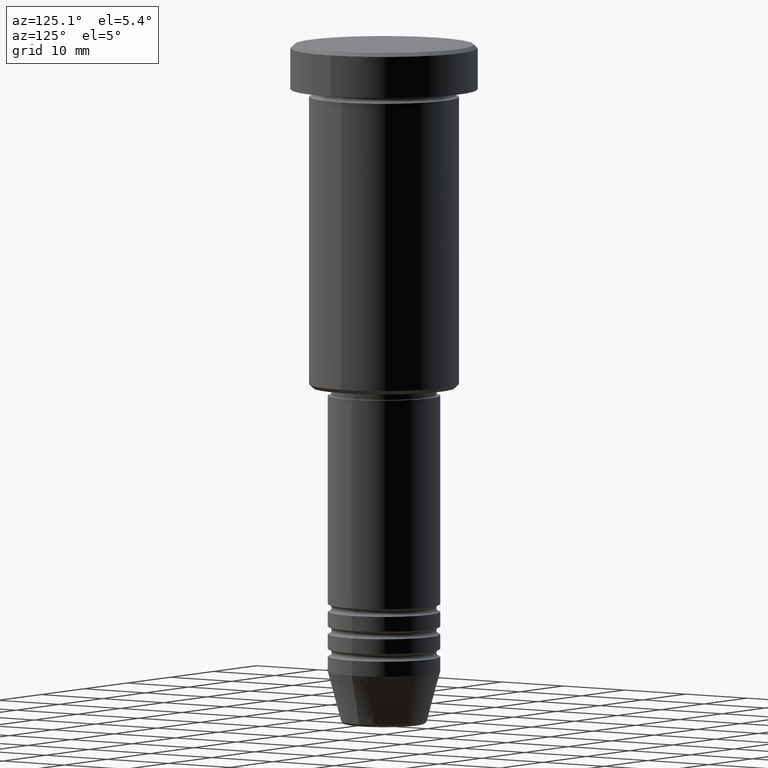
[diagram: clean part render]
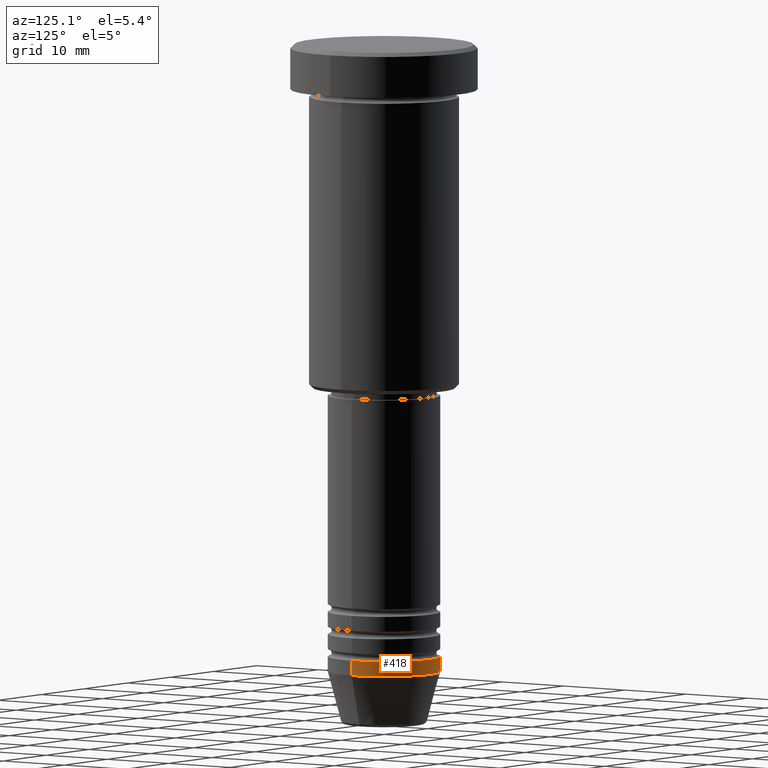
[diagram: same view with one face highlighted and labeled with its STEP entity id]
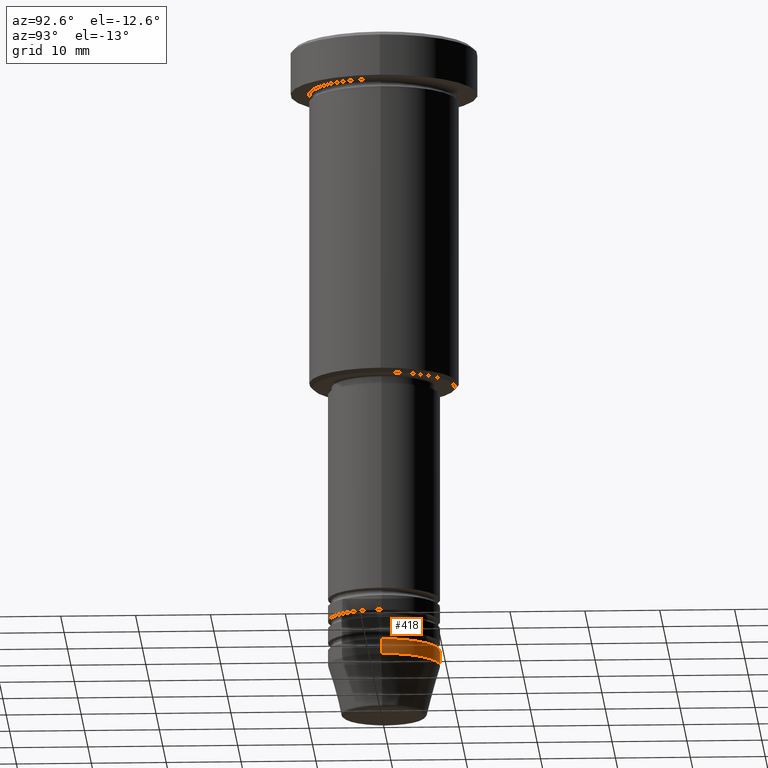
[diagram: same view with one face highlighted and labeled with its STEP entity id]
A machine part, auxiliary view. The second image highlights one B-rep face of the part: STEP entity #418.
A second angle (auxiliary view) of the same face is appended — the face is thin or edge-on in the first view.
In plain terms, the highlighted cylindrical surface (partial cylindrical patch) has radius 7.5 mm, axis along (-0, -0, 1).
Its self-contained STEP definition (entity closure, byte-faithful):
#54 = DIRECTION ( 'NONE',  ( -0.000000000000000000, -0.000000000000000000, 1.000000000000000000 ) ) ;
#65 = CARTESIAN_POINT ( 'NONE',  ( 0.000000000000000000, 0.000000000000000000, -81.99999999999998579 ) ) ;
#68 = CARTESIAN_POINT ( 'NONE',  ( 0.000000000000000000, 0.000000000000000000, 0.000000000000000000 ) ) ;
#72 = DIRECTION ( 'NONE',  ( -0.000000000000000000, -0.000000000000000000, 1.000000000000000000 ) ) ;
#90 = CARTESIAN_POINT ( 'NONE',  ( -7.500000000000000000, 9.184850993605147944E-16, 0.000000000000000000 ) ) ;
#113 = AXIS2_PLACEMENT_3D ( 'NONE', #65, #980, #878 ) ;
#214 = EDGE_CURVE ( 'NONE', #919, #554, #623, .T. ) ;
#227 = CARTESIAN_POINT ( 'NONE',  ( 7.500000000000000000, 0.000000000000000000, -81.99999999999998579 ) ) ;
#235 = CYLINDRICAL_SURFACE ( 'NONE', #373, 7.500000000000000000 ) ;
#308 = VECTOR ( 'NONE', #458, 1000.000000000000000 ) ;
#309 = VECTOR ( 'NONE', #863, 1000.000000000000000 ) ;
#338 = VERTEX_POINT ( 'NONE', #928 ) ;
#373 = AXIS2_PLACEMENT_3D ( 'NONE', #68, #54, #880 ) ;
#379 = LINE ( 'NONE', #90, #308 ) ;
#418 = ADVANCED_FACE ( 'NONE', ( #437 ), #235, .T. ) ;
#437 = FACE_OUTER_BOUND ( 'NONE', #903, .T. ) ;
#458 = DIRECTION ( 'NONE',  ( -0.000000000000000000, -0.000000000000000000, 1.000000000000000000 ) ) ;
#484 = CARTESIAN_POINT ( 'NONE',  ( 7.500000000000000000, 0.000000000000000000, 0.000000000000000000 ) ) ;
#501 = LINE ( 'NONE', #484, #309 ) ;
#554 = VERTEX_POINT ( 'NONE', #1158 ) ;
#623 = CIRCLE ( 'NONE', #113, 7.500000000000000000 ) ;
#657 = AXIS2_PLACEMENT_3D ( 'NONE', #892, #72, #816 ) ;
#673 = ORIENTED_EDGE ( 'NONE', *, *, #938, .F. ) ;
#692 = CIRCLE ( 'NONE', #657, 7.500000000000000000 ) ;
#704 = VERTEX_POINT ( 'NONE', #1120 ) ;
#764 = EDGE_CURVE ( 'NONE', #704, #554, #379, .T. ) ;
#816 = DIRECTION ( 'NONE',  ( 1.000000000000000000, 0.000000000000000000, 0.000000000000000000 ) ) ;
#843 = EDGE_CURVE ( 'NONE', #338, #704, #692, .T. ) ;
#863 = DIRECTION ( 'NONE',  ( -0.000000000000000000, -0.000000000000000000, 1.000000000000000000 ) ) ;
#878 = DIRECTION ( 'NONE',  ( 1.000000000000000000, 0.000000000000000000, 0.000000000000000000 ) ) ;
#880 = DIRECTION ( 'NONE',  ( 1.000000000000000000, 0.000000000000000000, 0.000000000000000000 ) ) ;
#892 = CARTESIAN_POINT ( 'NONE',  ( 0.000000000000000000, 0.000000000000000000, -83.99999999999998579 ) ) ;
#903 = EDGE_LOOP ( 'NONE', ( #1098, #1017, #1063, #673 ) ) ;
#919 = VERTEX_POINT ( 'NONE', #227 ) ;
#928 = CARTESIAN_POINT ( 'NONE',  ( 7.500000000000000000, 0.000000000000000000, -83.99999999999998579 ) ) ;
#938 = EDGE_CURVE ( 'NONE', #338, #919, #501, .T. ) ;
#980 = DIRECTION ( 'NONE',  ( -0.000000000000000000, -0.000000000000000000, 1.000000000000000000 ) ) ;
#1017 = ORIENTED_EDGE ( 'NONE', *, *, #764, .T. ) ;
#1063 = ORIENTED_EDGE ( 'NONE', *, *, #214, .F. ) ;
#1098 = ORIENTED_EDGE ( 'NONE', *, *, #843, .T. ) ;
#1120 = CARTESIAN_POINT ( 'NONE',  ( -7.500000000000000000, 9.184850993605147944E-16, -83.99999999999998579 ) ) ;
#1158 = CARTESIAN_POINT ( 'NONE',  ( -7.500000000000000000, 9.184850993605147944E-16, -81.99999999999998579 ) ) ;